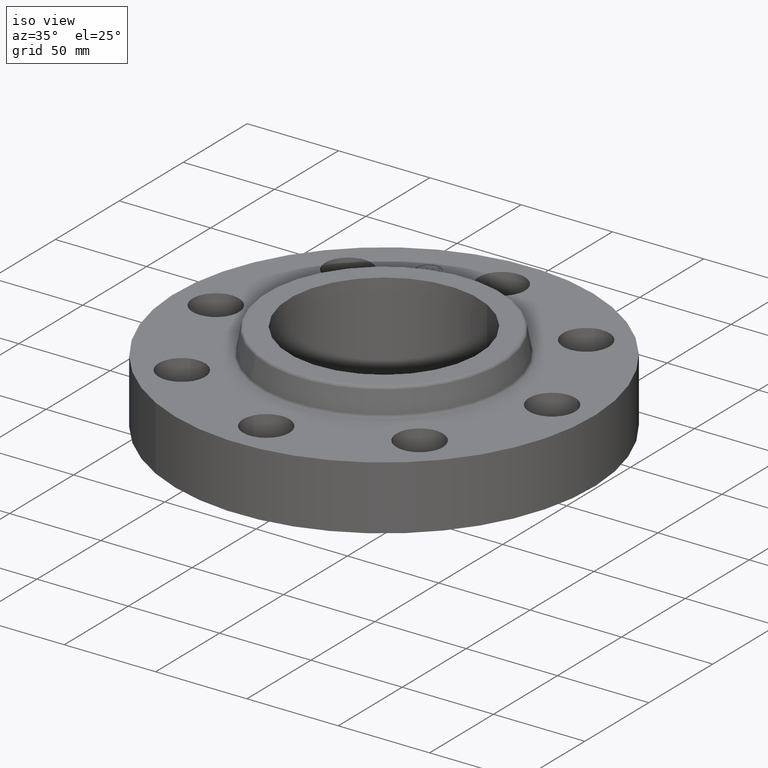
[diagram: clean part render]
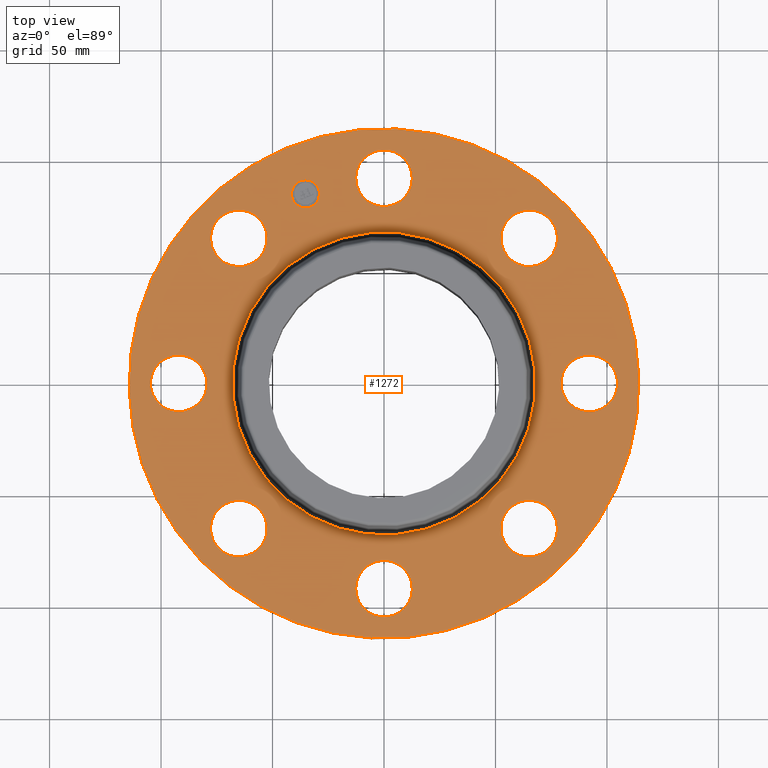
[diagram: tour spotlight — one face highlighted and labeled with its STEP entity id]
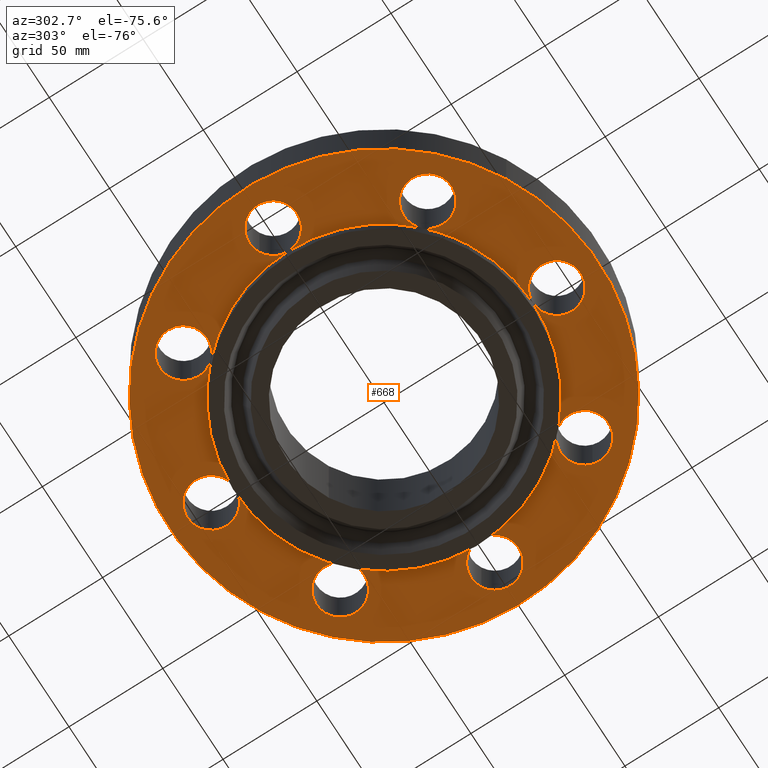
[diagram: tour spotlight — one face highlighted and labeled with its STEP entity id]
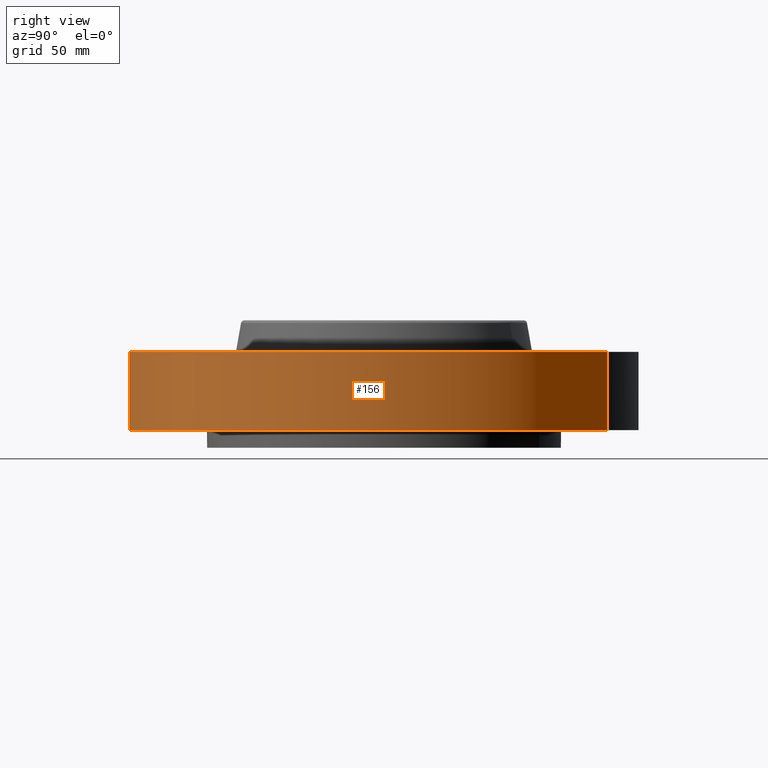
[diagram: tour spotlight — one face highlighted and labeled with its STEP entity id]
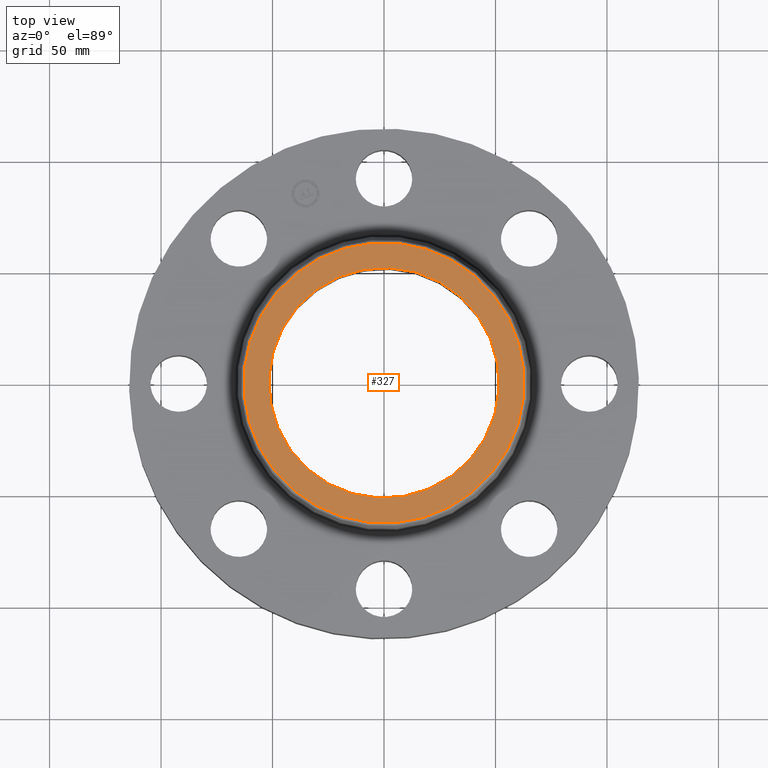
[diagram: tour spotlight — one face highlighted and labeled with its STEP entity id]
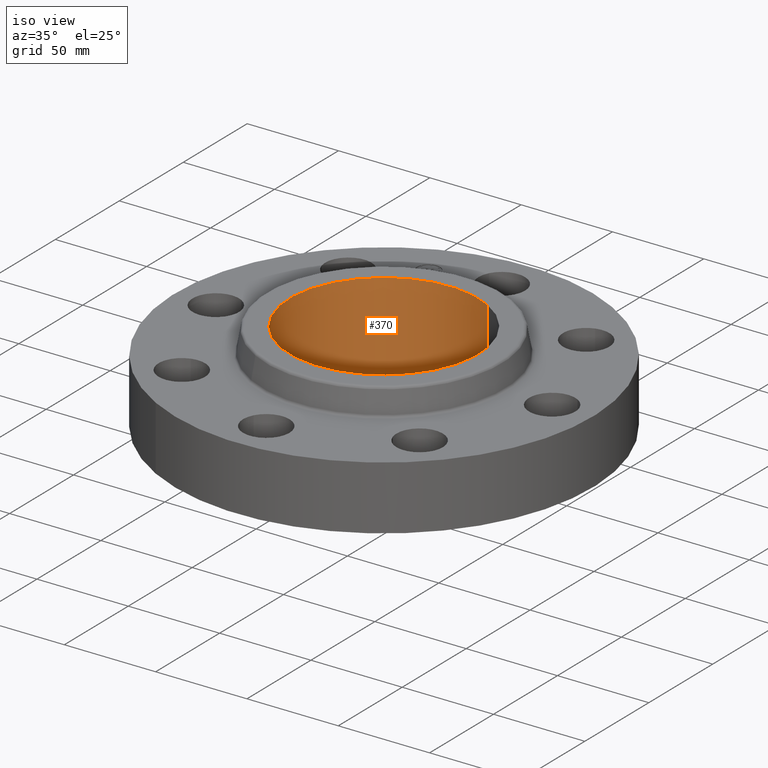
[diagram: tour spotlight — one face highlighted and labeled with its STEP entity id]
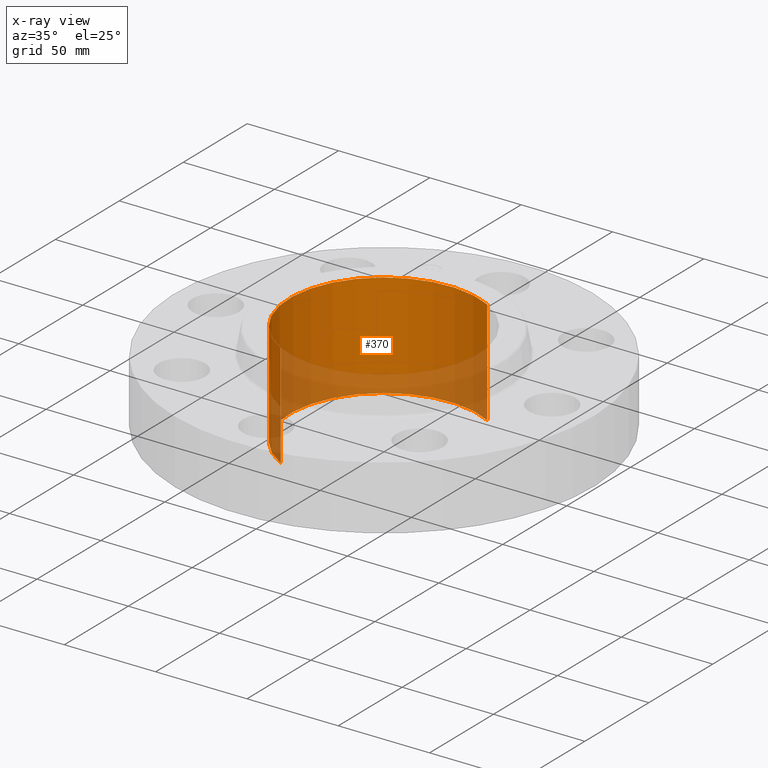
[diagram: x-ray of the same camera — body ghosted, this tour face saturated]
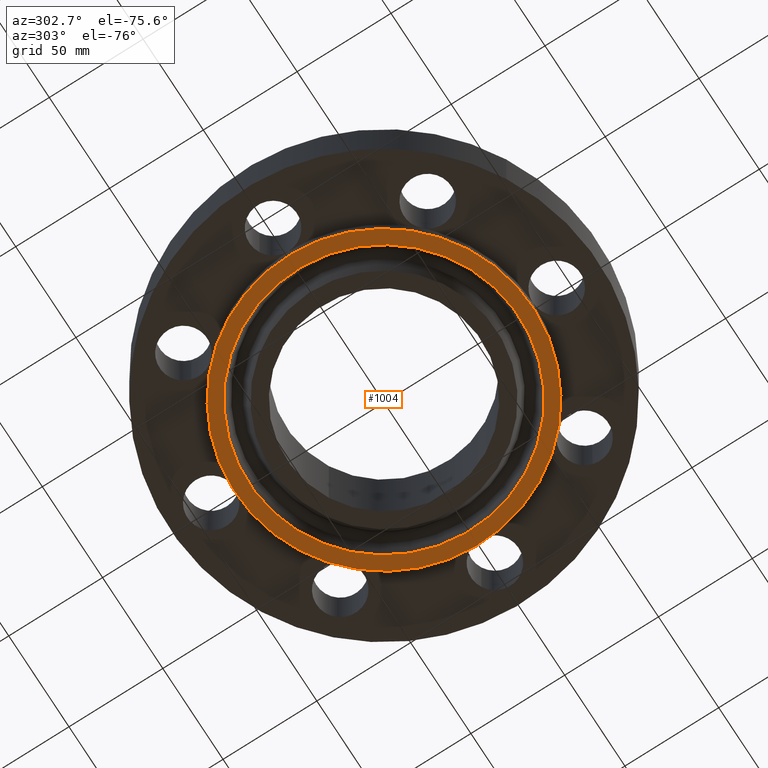
[diagram: tour spotlight — one face highlighted and labeled with its STEP entity id]
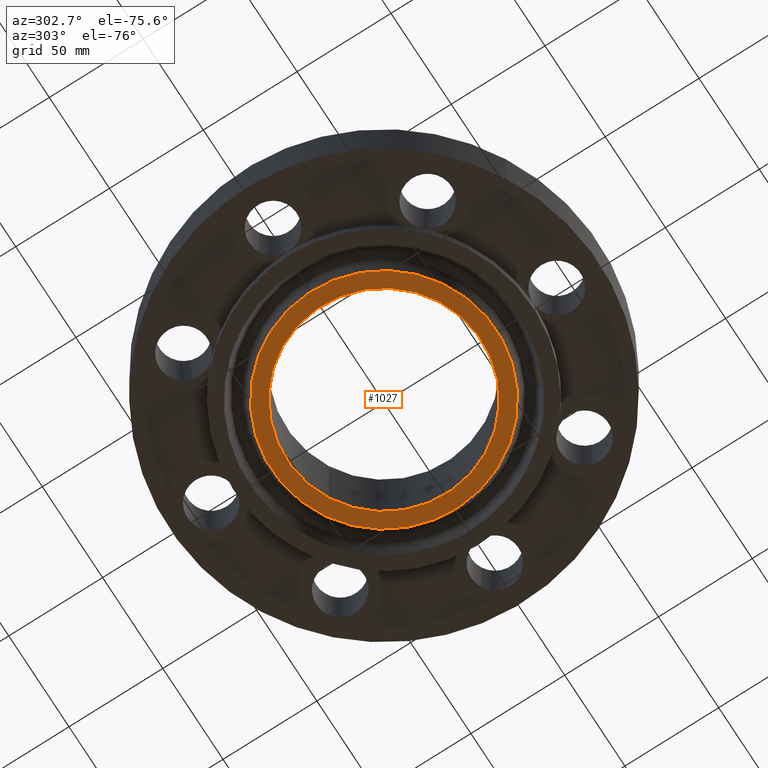
[diagram: tour spotlight — one face highlighted and labeled with its STEP entity id]
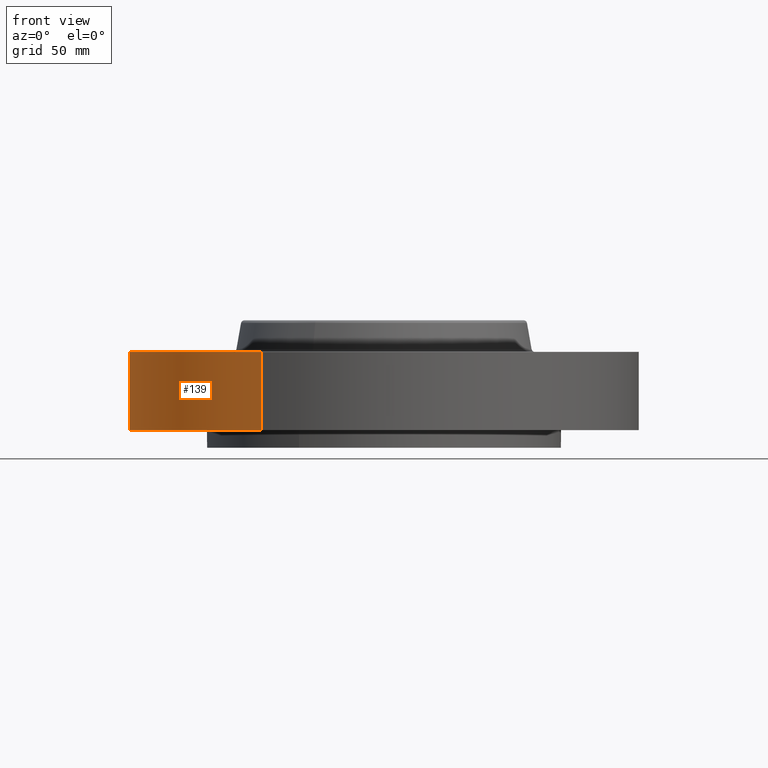
[diagram: tour spotlight — one face highlighted and labeled with its STEP entity id]
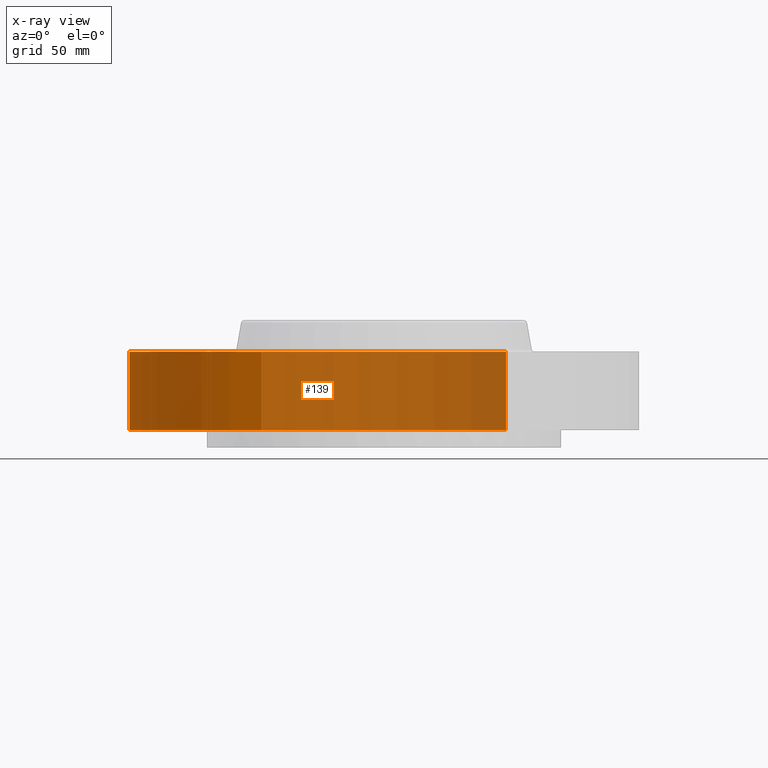
[diagram: x-ray of the same camera — body ghosted, this tour face saturated]
A machine part: a face-by-face anatomy tour. The part has 427 B-rep faces; the first image is the clean iso view, then the 8 largest visible faces are spotlighted one at a time (largest first), each with its STEP entity span.

Face 1 — top view, entity #1272. In plain terms, the highlighted planar face has unit normal (0, 0, -1).
Definition (entity closure, byte-faithful):
#65=AXIS2_PLACEMENT_3D('Circle Axis2P3D',#63,#64,$) ;
#89=AXIS2_PLACEMENT_3D('Circle Axis2P3D',#87,#88,$) ;
#123=AXIS2_PLACEMENT_3D('Circle Axis2P3D',#121,#122,$) ;
#147=AXIS2_PLACEMENT_3D('Circle Axis2P3D',#145,#146,$) ;
#164=AXIS2_PLACEMENT_3D('Circle Axis2P3D',#162,#163,$) ;
#199=AXIS2_PLACEMENT_3D('Circle Axis2P3D',#197,#198,$) ;
#690=AXIS2_PLACEMENT_3D('Circle Axis2P3D',#688,#689,$) ;
#702=AXIS2_PLACEMENT_3D('Circle Axis2P3D',#700,#701,$) ;
#734=AXIS2_PLACEMENT_3D('Circle Axis2P3D',#732,#733,$) ;
#746=AXIS2_PLACEMENT_3D('Circle Axis2P3D',#744,#745,$) ;
#778=AXIS2_PLACEMENT_3D('Circle Axis2P3D',#776,#777,$) ;
#790=AXIS2_PLACEMENT_3D('Circle Axis2P3D',#788,#789,$) ;
#822=AXIS2_PLACEMENT_3D('Circle Axis2P3D',#820,#821,$) ;
#834=AXIS2_PLACEMENT_3D('Circle Axis2P3D',#832,#833,$) ;
#866=AXIS2_PLACEMENT_3D('Circle Axis2P3D',#864,#865,$) ;
#878=AXIS2_PLACEMENT_3D('Circle Axis2P3D',#876,#877,$) ;
#910=AXIS2_PLACEMENT_3D('Circle Axis2P3D',#908,#909,$) ;
#922=AXIS2_PLACEMENT_3D('Circle Axis2P3D',#920,#921,$) ;
#954=AXIS2_PLACEMENT_3D('Circle Axis2P3D',#952,#953,$) ;
#966=AXIS2_PLACEMENT_3D('Circle Axis2P3D',#964,#965,$) ;
#1212=AXIS2_PLACEMENT_3D('Plane Axis2P3D',#1209,#1210,#1211) ;
#1256=AXIS2_PLACEMENT_3D('Circle Axis2P3D',#1254,#1255,$) ;
#1265=AXIS2_PLACEMENT_3D('Circle Axis2P3D',#1263,#1264,$) ;
#46=CARTESIAN_POINT('Vertex',(-0.438791280947,3.86471276932,1.38000000001)) ;
#60=CARTESIAN_POINT('Vertex',(0.438791280947,3.38528723071,1.38000000001)) ;
#63=CARTESIAN_POINT('Axis2P3D Location',(0.,3.62500000001,1.38000000001)) ;
#87=CARTESIAN_POINT('Axis2P3D Location',(0.,3.62500000001,1.38000000001)) ;
#118=CARTESIAN_POINT('Vertex',(-2.15741492373,-3.94912152852,1.38000000001)) ;
#121=CARTESIAN_POINT('Axis2P3D Location',(0.,0.,1.38000000001)) ;
#125=CARTESIAN_POINT('Vertex',(2.15741492373,3.94912152852,1.38000000001)) ;
#145=CARTESIAN_POINT('Axis2P3D Location',(0.,0.,1.38000000001)) ;
#162=CARTESIAN_POINT('Axis2P3D Location',(0.,0.,1.38000000001)) ;
#166=CARTESIAN_POINT('Vertex',(1.2826291864,2.34783697721,1.38000000001)) ;
#168=CARTESIAN_POINT('Vertex',(-1.2826291864,-2.34783697721,1.38000000001)) ;
#197=CARTESIAN_POINT('Axis2P3D Location',(0.,0.,1.38000000001)) ;
#678=CARTESIAN_POINT('Vertex',(0.438791280947,-3.86471276932,1.38000000001)) ;
#685=CARTESIAN_POINT('Vertex',(-0.438791280947,-3.38528723071,1.38000000001)) ;
#688=CARTESIAN_POINT('Axis2P3D Location',(4.43934464693E-016,-3.62500000001,1.38000000001)) ;
#700=CARTESIAN_POINT('Axis2P3D Location',(4.43934464693E-016,-3.62500000001,1.38000000001)) ;
#722=CARTESIAN_POINT('Vertex',(-3.04303689681,2.42249231624,1.38000000001)) ;
#729=CARTESIAN_POINT('Vertex',(-2.08348726682,2.70403184738,1.38000000001)) ;
#732=CARTESIAN_POINT('Axis2P3D Location',(-2.56326208181,2.56326208181,1.38000000001)) ;
#744=CARTESIAN_POINT('Axis2P3D Location',(-2.56326208181,2.56326208181,1.38000000001)) ;
#766=CARTESIAN_POINT('Vertex',(3.04303689681,-2.42249231624,1.38000000001)) ;
#773=CARTESIAN_POINT('Vertex',(2.08348726682,-2.70403184738,1.38000000001)) ;
#776=CARTESIAN_POINT('Axis2P3D Location',(2.56326208181,-2.56326208181,1.38000000001)) ;
#788=CARTESIAN_POINT('Axis2P3D Location',(2.56326208181,-2.56326208181,1.38000000001)) ;
#810=CARTESIAN_POINT('Vertex',(2.42249231624,3.04303689681,1.38000000001)) ;
#817=CARTESIAN_POINT('Vertex',(2.70403184738,2.08348726682,1.38000000001)) ;
#820=CARTESIAN_POINT('Axis2P3D Location',(2.56326208181,2.56326208181,1.38000000001)) ;
#832=CARTESIAN_POINT('Axis2P3D Location',(2.56326208181,2.56326208181,1.38000000001)) ;
#854=CARTESIAN_POINT('Vertex',(-3.86471276932,-0.438791280947,1.38000000001)) ;
#861=CARTESIAN_POINT('Vertex',(-3.38528723071,0.438791280947,1.38000000001)) ;
#864=CARTESIAN_POINT('Axis2P3D Location',(-3.62500000001,-1.22538416614E-015,1.38000000001)) ;
#876=CARTESIAN_POINT('Axis2P3D Location',(-3.62500000001,-1.22538416614E-015,1.38000000001)) ;
#898=CARTESIAN_POINT('Vertex',(-2.42249231624,-3.04303689681,1.38000000001)) ;
#905=CARTESIAN_POINT('Vertex',(-2.70403184738,-2.08348726682,1.38000000001)) ;
#908=CARTESIAN_POINT('Axis2P3D Location',(-2.56326208181,-2.56326208181,1.38000000001)) ;
#920=CARTESIAN_POINT('Axis2P3D Location',(-2.56326208181,-2.56326208181,1.38000000001)) ;
#942=CARTESIAN_POINT('Vertex',(3.86471276932,0.438791280947,1.38000000001)) ;
#949=CARTESIAN_POINT('Vertex',(3.38528723071,-0.438791280947,1.38000000001)) ;
#952=CARTESIAN_POINT('Axis2P3D Location',(3.62500000001,2.21967232346E-016,1.38000000001)) ;
#964=CARTESIAN_POINT('Axis2P3D Location',(3.62500000001,2.21967232346E-016,1.38000000001)) ;
#1209=CARTESIAN_POINT('Axis2P3D Location',(0.,4.50000000002,1.38000000001)) ;
#1254=CARTESIAN_POINT('Axis2P3D Location',(-1.38722744233,3.34906330537,1.38000000001)) ;
#1258=CARTESIAN_POINT('Vertex',(-1.61588762663,3.25434915586,1.38000000001)) ;
#1260=CARTESIAN_POINT('Vertex',(-1.15856725803,3.44377745488,1.38000000001)) ;
#1263=CARTESIAN_POINT('Axis2P3D Location',(-1.38722744233,3.34906330537,1.38000000001)) ;
#64=DIRECTION('Axis2P3D Direction',(0.,-0.,-0.0393700787402)) ;
#88=DIRECTION('Axis2P3D Direction',(0.,-0.,-0.0393700787402)) ;
#122=DIRECTION('Axis2P3D Direction',(0.,0.,-0.0393700787402)) ;
#146=DIRECTION('Axis2P3D Direction',(0.,0.,-0.0393700787402)) ;
#163=DIRECTION('Axis2P3D Direction',(0.,0.,-0.0393700787402)) ;
#198=DIRECTION('Axis2P3D Direction',(0.,0.,-0.0393700787402)) ;
#689=DIRECTION('Axis2P3D Direction',(-0.,0.,-0.0393700787402)) ;
#701=DIRECTION('Axis2P3D Direction',(-0.,0.,-0.0393700787402)) ;
#733=DIRECTION('Axis2P3D Direction',(0.,0.,-0.0393700787402)) ;
#745=DIRECTION('Axis2P3D Direction',(0.,0.,-0.0393700787402)) ;
#777=DIRECTION('Axis2P3D Direction',(-0.,0.,-0.0393700787402)) ;
#789=DIRECTION('Axis2P3D Direction',(-0.,0.,-0.0393700787402)) ;
#821=DIRECTION('Axis2P3D Direction',(0.,-0.,-0.0393700787402)) ;
#833=DIRECTION('Axis2P3D Direction',(0.,-0.,-0.0393700787402)) ;
#865=DIRECTION('Axis2P3D Direction',(0.,0.,-0.0393700787402)) ;
#877=DIRECTION('Axis2P3D Direction',(0.,0.,-0.0393700787402)) ;
#909=DIRECTION('Axis2P3D Direction',(0.,0.,-0.0393700787402)) ;
#921=DIRECTION('Axis2P3D Direction',(0.,0.,-0.0393700787402)) ;
#953=DIRECTION('Axis2P3D Direction',(0.,-0.,-0.0393700787402)) ;
#965=DIRECTION('Axis2P3D Direction',(0.,-0.,-0.0393700787402)) ;
#1210=DIRECTION('Axis2P3D Direction',(0.,0.,-0.0393700787402)) ;
#1211=DIRECTION('Axis2P3D XDirection',(0.0393700787402,0.,0.)) ;
#1255=DIRECTION('Axis2P3D Direction',(0.,0.,-0.0393700787402)) ;
#1264=DIRECTION('Axis2P3D Direction',(0.,0.,-0.0393700787402)) ;
#1215=ORIENTED_EDGE('',*,*,#149,.F.) ;
#1216=ORIENTED_EDGE('',*,*,#127,.F.) ;
#1219=ORIENTED_EDGE('',*,*,#67,.T.) ;
#1220=ORIENTED_EDGE('',*,*,#91,.T.) ;
#1223=ORIENTED_EDGE('',*,*,#201,.T.) ;
#1224=ORIENTED_EDGE('',*,*,#170,.T.) ;
#1227=ORIENTED_EDGE('',*,*,#836,.T.) ;
#1228=ORIENTED_EDGE('',*,*,#824,.T.) ;
#1231=ORIENTED_EDGE('',*,*,#968,.T.) ;
#1232=ORIENTED_EDGE('',*,*,#956,.T.) ;
#1235=ORIENTED_EDGE('',*,*,#792,.T.) ;
#1236=ORIENTED_EDGE('',*,*,#780,.T.) ;
#1239=ORIENTED_EDGE('',*,*,#704,.T.) ;
#1240=ORIENTED_EDGE('',*,*,#692,.T.) ;
#1243=ORIENTED_EDGE('',*,*,#924,.T.) ;
#1244=ORIENTED_EDGE('',*,*,#912,.T.) ;
#1247=ORIENTED_EDGE('',*,*,#880,.T.) ;
#1248=ORIENTED_EDGE('',*,*,#868,.T.) ;
#1251=ORIENTED_EDGE('',*,*,#748,.T.) ;
#1252=ORIENTED_EDGE('',*,*,#736,.T.) ;
#1269=ORIENTED_EDGE('',*,*,#1262,.T.) ;
#1270=ORIENTED_EDGE('',*,*,#1267,.T.) ;
#1221=FACE_BOUND('',#1218,.T.) ;
#1225=FACE_BOUND('',#1222,.T.) ;
#1229=FACE_BOUND('',#1226,.T.) ;
#1233=FACE_BOUND('',#1230,.T.) ;
#1237=FACE_BOUND('',#1234,.T.) ;
#1241=FACE_BOUND('',#1238,.T.) ;
#1245=FACE_BOUND('',#1242,.T.) ;
#1249=FACE_BOUND('',#1246,.T.) ;
#1253=FACE_BOUND('',#1250,.T.) ;
#1271=FACE_BOUND('',#1268,.T.) ;
#1272=ADVANCED_FACE('PartBody',(#1217,#1221,#1225,#1229,#1233,#1237,#1241,#1245,#1249,#1253,#1271),#1213,.F.) ;
#66=CIRCLE('generated circle',#65,0.500000000002) ;
#90=CIRCLE('generated circle',#89,0.500000000002) ;
#124=CIRCLE('generated circle',#123,4.50000000002) ;
#148=CIRCLE('generated circle',#147,4.50000000002) ;
#165=CIRCLE('generated circle',#164,2.67534597788) ;
#200=CIRCLE('generated circle',#199,2.67534597788) ;
#691=CIRCLE('generated circle',#690,0.500000000002) ;
#703=CIRCLE('generated circle',#702,0.500000000002) ;
#735=CIRCLE('generated circle',#734,0.500000000002) ;
#747=CIRCLE('generated circle',#746,0.500000000002) ;
#779=CIRCLE('generated circle',#778,0.500000000002) ;
#791=CIRCLE('generated circle',#790,0.500000000002) ;
#823=CIRCLE('generated circle',#822,0.500000000002) ;
#835=CIRCLE('generated circle',#834,0.500000000002) ;
#867=CIRCLE('generated circle',#866,0.500000000002) ;
#879=CIRCLE('generated circle',#878,0.500000000002) ;
#911=CIRCLE('generated circle',#910,0.500000000002) ;
#923=CIRCLE('generated circle',#922,0.500000000002) ;
#955=CIRCLE('generated circle',#954,0.500000000002) ;
#967=CIRCLE('generated circle',#966,0.500000000002) ;
#1257=CIRCLE('generated circle',#1256,0.247500000001) ;
#1266=CIRCLE('generated circle',#1265,0.247500000001) ;
#67=EDGE_CURVE('',#47,#61,#66,.T.) ;
#91=EDGE_CURVE('',#61,#47,#90,.T.) ;
#127=EDGE_CURVE('',#119,#126,#124,.T.) ;
#149=EDGE_CURVE('',#126,#119,#148,.T.) ;
#170=EDGE_CURVE('',#167,#169,#165,.T.) ;
#201=EDGE_CURVE('',#169,#167,#200,.T.) ;
#692=EDGE_CURVE('',#679,#686,#691,.T.) ;
#704=EDGE_CURVE('',#686,#679,#703,.T.) ;
#736=EDGE_CURVE('',#723,#730,#735,.T.) ;
#748=EDGE_CURVE('',#730,#723,#747,.T.) ;
#780=EDGE_CURVE('',#767,#774,#779,.T.) ;
#792=EDGE_CURVE('',#774,#767,#791,.T.) ;
#824=EDGE_CURVE('',#811,#818,#823,.T.) ;
#836=EDGE_CURVE('',#818,#811,#835,.T.) ;
#868=EDGE_CURVE('',#855,#862,#867,.T.) ;
#880=EDGE_CURVE('',#862,#855,#879,.T.) ;
#912=EDGE_CURVE('',#899,#906,#911,.T.) ;
#924=EDGE_CURVE('',#906,#899,#923,.T.) ;
#956=EDGE_CURVE('',#943,#950,#955,.T.) ;
#968=EDGE_CURVE('',#950,#943,#967,.T.) ;
#1262=EDGE_CURVE('',#1259,#1261,#1257,.T.) ;
#1267=EDGE_CURVE('',#1261,#1259,#1266,.T.) ;
#1214=EDGE_LOOP('',(#1215,#1216)) ;
#1218=EDGE_LOOP('',(#1219,#1220)) ;
#1222=EDGE_LOOP('',(#1223,#1224)) ;
#1226=EDGE_LOOP('',(#1227,#1228)) ;
#1230=EDGE_LOOP('',(#1231,#1232)) ;
#1234=EDGE_LOOP('',(#1235,#1236)) ;
#1238=EDGE_LOOP('',(#1239,#1240)) ;
#1242=EDGE_LOOP('',(#1243,#1244)) ;
#1246=EDGE_LOOP('',(#1247,#1248)) ;
#1250=EDGE_LOOP('',(#1251,#1252)) ;
#1268=EDGE_LOOP('',(#1269,#1270)) ;
#1217=FACE_OUTER_BOUND('',#1214,.T.) ;
#1213=PLANE('',#1212) ;
#47=VERTEX_POINT('',#46) ;
#61=VERTEX_POINT('',#60) ;
#119=VERTEX_POINT('',#118) ;
#126=VERTEX_POINT('',#125) ;
#167=VERTEX_POINT('',#166) ;
#169=VERTEX_POINT('',#168) ;
#679=VERTEX_POINT('',#678) ;
#686=VERTEX_POINT('',#685) ;
#723=VERTEX_POINT('',#722) ;
#730=VERTEX_POINT('',#729) ;
#767=VERTEX_POINT('',#766) ;
#774=VERTEX_POINT('',#773) ;
#811=VERTEX_POINT('',#810) ;
#818=VERTEX_POINT('',#817) ;
#855=VERTEX_POINT('',#854) ;
#862=VERTEX_POINT('',#861) ;
#899=VERTEX_POINT('',#898) ;
#906=VERTEX_POINT('',#905) ;
#943=VERTEX_POINT('',#942) ;
#950=VERTEX_POINT('',#949) ;
#1259=VERTEX_POINT('',#1258) ;
#1261=VERTEX_POINT('',#1260) ;

Face 2 — auxiliary view, entity #668. In plain terms, the highlighted planar face has unit normal (0, 0, -1).
Definition (entity closure, byte-faithful):
#51=AXIS2_PLACEMENT_3D('Circle Axis2P3D',#49,#50,$) ;
#77=AXIS2_PLACEMENT_3D('Circle Axis2P3D',#75,#76,$) ;
#84=AXIS2_PLACEMENT_3D('Circle Axis2P3D',#82,#83,$) ;
#107=AXIS2_PLACEMENT_3D('Circle Axis2P3D',#105,#106,$) ;
#142=AXIS2_PLACEMENT_3D('Circle Axis2P3D',#140,#141,$) ;
#394=AXIS2_PLACEMENT_3D('Circle Axis2P3D',#392,#393,$) ;
#401=AXIS2_PLACEMENT_3D('Circle Axis2P3D',#399,#400,$) ;
#408=AXIS2_PLACEMENT_3D('Circle Axis2P3D',#406,#407,$) ;
#415=AXIS2_PLACEMENT_3D('Circle Axis2P3D',#413,#414,$) ;
#420=AXIS2_PLACEMENT_3D('Circle Axis2P3D',#418,#419,$) ;
#448=AXIS2_PLACEMENT_3D('Circle Axis2P3D',#446,#447,$) ;
#455=AXIS2_PLACEMENT_3D('Circle Axis2P3D',#453,#454,$) ;
#462=AXIS2_PLACEMENT_3D('Circle Axis2P3D',#460,#461,$) ;
#469=AXIS2_PLACEMENT_3D('Circle Axis2P3D',#467,#468,$) ;
#476=AXIS2_PLACEMENT_3D('Circle Axis2P3D',#474,#475,$) ;
#493=AXIS2_PLACEMENT_3D('Plane Axis2P3D',#490,#491,#492) ;
#501=AXIS2_PLACEMENT_3D('Circle Axis2P3D',#499,#500,$) ;
#508=AXIS2_PLACEMENT_3D('Circle Axis2P3D',#506,#507,$) ;
#515=AXIS2_PLACEMENT_3D('Circle Axis2P3D',#513,#514,$) ;
#520=AXIS2_PLACEMENT_3D('Circle Axis2P3D',#518,#519,$) ;
#527=AXIS2_PLACEMENT_3D('Circle Axis2P3D',#525,#526,$) ;
#534=AXIS2_PLACEMENT_3D('Circle Axis2P3D',#532,#533,$) ;
#539=AXIS2_PLACEMENT_3D('Circle Axis2P3D',#537,#538,$) ;
#546=AXIS2_PLACEMENT_3D('Circle Axis2P3D',#544,#545,$) ;
#553=AXIS2_PLACEMENT_3D('Circle Axis2P3D',#551,#552,$) ;
#558=AXIS2_PLACEMENT_3D('Circle Axis2P3D',#556,#557,$) ;
#565=AXIS2_PLACEMENT_3D('Circle Axis2P3D',#563,#564,$) ;
#572=AXIS2_PLACEMENT_3D('Circle Axis2P3D',#570,#571,$) ;
#577=AXIS2_PLACEMENT_3D('Circle Axis2P3D',#575,#576,$) ;
#584=AXIS2_PLACEMENT_3D('Circle Axis2P3D',#582,#583,$) ;
#591=AXIS2_PLACEMENT_3D('Circle Axis2P3D',#589,#590,$) ;
#596=AXIS2_PLACEMENT_3D('Circle Axis2P3D',#594,#595,$) ;
#603=AXIS2_PLACEMENT_3D('Circle Axis2P3D',#601,#602,$) ;
#610=AXIS2_PLACEMENT_3D('Circle Axis2P3D',#608,#609,$) ;
#615=AXIS2_PLACEMENT_3D('Circle Axis2P3D',#613,#614,$) ;
#622=AXIS2_PLACEMENT_3D('Circle Axis2P3D',#620,#621,$) ;
#629=AXIS2_PLACEMENT_3D('Circle Axis2P3D',#627,#628,$) ;
#44=CARTESIAN_POINT('Vertex',(-0.438791280947,3.86471276932,0.)) ;
#49=CARTESIAN_POINT('Axis2P3D Location',(0.,3.62500000001,0.)) ;
#53=CARTESIAN_POINT('Vertex',(0.438791280947,3.38528723071,0.)) ;
#75=CARTESIAN_POINT('Axis2P3D Location',(0.,3.62500000001,0.)) ;
#79=CARTESIAN_POINT('Vertex',(-1.33945743657E-015,3.12500000001,2.79741234551E-016)) ;
#82=CARTESIAN_POINT('Axis2P3D Location',(0.,3.62500000001,0.)) ;
#105=CARTESIAN_POINT('Axis2P3D Location',(0.,0.,4.19611851827E-016)) ;
#109=CARTESIAN_POINT('Vertex',(-2.15741492373,-3.94912152852,2.79741234551E-016)) ;
#111=CARTESIAN_POINT('Vertex',(2.15741492373,3.94912152852,2.79741234551E-016)) ;
#140=CARTESIAN_POINT('Axis2P3D Location',(0.,0.,4.19611851827E-016)) ;
#389=CARTESIAN_POINT('Vertex',(-1.49820480814,-2.74244550592,2.79741234551E-016)) ;
#392=CARTESIAN_POINT('Axis2P3D Location',(0.,0.,2.79741234551E-016)) ;
#396=CARTESIAN_POINT('Vertex',(-2.20970869122,-2.20970869122,0.)) ;
#399=CARTESIAN_POINT('Axis2P3D Location',(0.,0.,2.79741234551E-016)) ;
#403=CARTESIAN_POINT('Vertex',(-3.12500000001,-1.67844740731E-015,0.)) ;
#406=CARTESIAN_POINT('Axis2P3D Location',(0.,0.,2.79741234551E-016)) ;
#410=CARTESIAN_POINT('Vertex',(-2.20970869122,2.20970869122,0.)) ;
#413=CARTESIAN_POINT('Axis2P3D Location',(0.,0.,2.79741234551E-016)) ;
#418=CARTESIAN_POINT('Axis2P3D Location',(0.,0.,2.79741234551E-016)) ;
#422=CARTESIAN_POINT('Vertex',(1.49820480814,2.74244550592,2.79741234551E-016)) ;
#446=CARTESIAN_POINT('Axis2P3D Location',(0.,0.,2.79741234551E-016)) ;
#450=CARTESIAN_POINT('Vertex',(2.20970869122,2.20970869122,0.)) ;
#453=CARTESIAN_POINT('Axis2P3D Location',(0.,0.,2.79741234551E-016)) ;
#457=CARTESIAN_POINT('Vertex',(3.12500000001,0.,0.)) ;
#460=CARTESIAN_POINT('Axis2P3D Location',(0.,0.,2.79741234551E-016)) ;
#464=CARTESIAN_POINT('Vertex',(2.20970869122,-2.20970869122,0.)) ;
#467=CARTESIAN_POINT('Axis2P3D Location',(0.,0.,2.79741234551E-016)) ;
#471=CARTESIAN_POINT('Vertex',(8.29897616581E-017,-3.12500000001,0.)) ;
#474=CARTESIAN_POINT('Axis2P3D Location',(0.,0.,2.79741234551E-016)) ;
#490=CARTESIAN_POINT('Axis2P3D Location',(0.,3.12500000001,0.)) ;
#499=CARTESIAN_POINT('Axis2P3D Location',(3.62500000001,0.,0.)) ;
#503=CARTESIAN_POINT('Vertex',(3.38528723071,-0.438791280947,0.)) ;
#506=CARTESIAN_POINT('Axis2P3D Location',(3.62500000001,5.59482469102E-016,0.)) ;
#510=CARTESIAN_POINT('Vertex',(3.86471276932,0.438791280947,0.)) ;
#513=CARTESIAN_POINT('Axis2P3D Location',(3.62500000001,0.,0.)) ;
#518=CARTESIAN_POINT('Axis2P3D Location',(2.56326208181,2.56326208181,0.)) ;
#522=CARTESIAN_POINT('Vertex',(2.70403184738,2.08348726682,0.)) ;
#525=CARTESIAN_POINT('Axis2P3D Location',(2.56326208181,2.56326208181,0.)) ;
#529=CARTESIAN_POINT('Vertex',(2.42249231624,3.04303689681,0.)) ;
#532=CARTESIAN_POINT('Axis2P3D Location',(2.56326208181,2.56326208181,0.)) ;
#537=CARTESIAN_POINT('Axis2P3D Location',(-2.56326208181,2.56326208181,0.)) ;
#541=CARTESIAN_POINT('Vertex',(-2.08348726682,2.70403184738,0.)) ;
#544=CARTESIAN_POINT('Axis2P3D Location',(-2.56326208181,2.56326208181,0.)) ;
#548=CARTESIAN_POINT('Vertex',(-3.04303689681,2.42249231624,0.)) ;
#551=CARTESIAN_POINT('Axis2P3D Location',(-2.56326208181,2.56326208181,0.)) ;
#556=CARTESIAN_POINT('Axis2P3D Location',(-3.62500000001,-1.67844740731E-015,0.)) ;
#560=CARTESIAN_POINT('Vertex',(-3.38528723071,0.438791280947,0.)) ;
#563=CARTESIAN_POINT('Axis2P3D Location',(-3.62500000001,-1.1189649382E-015,0.)) ;
#567=CARTESIAN_POINT('Vertex',(-3.86471276932,-0.438791280947,0.)) ;
#570=CARTESIAN_POINT('Axis2P3D Location',(-3.62500000001,-1.67844740731E-015,0.)) ;
#575=CARTESIAN_POINT('Axis2P3D Location',(-2.56326208181,-2.56326208181,0.)) ;
#579=CARTESIAN_POINT('Vertex',(-2.70403184738,-2.08348726682,0.)) ;
#582=CARTESIAN_POINT('Axis2P3D Location',(-2.56326208181,-2.56326208181,0.)) ;
#586=CARTESIAN_POINT('Vertex',(-2.42249231624,-3.04303689681,0.)) ;
#589=CARTESIAN_POINT('Axis2P3D Location',(-2.56326208181,-2.56326208181,0.)) ;
#594=CARTESIAN_POINT('Axis2P3D Location',(1.74838271595E-016,-3.62500000001,0.)) ;
#598=CARTESIAN_POINT('Vertex',(-0.438791280947,-3.38528723071,0.)) ;
#601=CARTESIAN_POINT('Axis2P3D Location',(2.79741234551E-016,-3.62500000001,0.)) ;
#605=CARTESIAN_POINT('Vertex',(0.438791280947,-3.86471276932,0.)) ;
#608=CARTESIAN_POINT('Axis2P3D Location',(1.74838271595E-016,-3.62500000001,0.)) ;
#613=CARTESIAN_POINT('Axis2P3D Location',(2.56326208181,-2.56326208181,0.)) ;
#617=CARTESIAN_POINT('Vertex',(2.08348726682,-2.70403184738,0.)) ;
#620=CARTESIAN_POINT('Axis2P3D Location',(2.56326208181,-2.56326208181,0.)) ;
#624=CARTESIAN_POINT('Vertex',(3.04303689681,-2.42249231624,0.)) ;
#627=CARTESIAN_POINT('Axis2P3D Location',(2.56326208181,-2.56326208181,0.)) ;
#50=DIRECTION('Axis2P3D Direction',(0.,-0.,-0.0393700787402)) ;
#76=DIRECTION('Axis2P3D Direction',(0.,-0.,-0.0393700787402)) ;
#83=DIRECTION('Axis2P3D Direction',(0.,-0.,-0.0393700787402)) ;
#106=DIRECTION('Axis2P3D Direction',(0.,0.,-0.0393700787402)) ;
#141=DIRECTION('Axis2P3D Direction',(0.,0.,-0.0393700787402)) ;
#393=DIRECTION('Axis2P3D Direction',(0.,0.,-0.0393700787402)) ;
#400=DIRECTION('Axis2P3D Direction',(0.,0.,-0.0393700787402)) ;
#407=DIRECTION('Axis2P3D Direction',(0.,0.,-0.0393700787402)) ;
#414=DIRECTION('Axis2P3D Direction',(0.,0.,-0.0393700787402)) ;
#419=DIRECTION('Axis2P3D Direction',(0.,0.,-0.0393700787402)) ;
#447=DIRECTION('Axis2P3D Direction',(0.,0.,-0.0393700787402)) ;
#454=DIRECTION('Axis2P3D Direction',(0.,0.,-0.0393700787402)) ;
#461=DIRECTION('Axis2P3D Direction',(0.,0.,-0.0393700787402)) ;
#468=DIRECTION('Axis2P3D Direction',(0.,0.,-0.0393700787402)) ;
#475=DIRECTION('Axis2P3D Direction',(0.,0.,-0.0393700787402)) ;
#491=DIRECTION('Axis2P3D Direction',(0.,0.,-0.0393700787402)) ;
#492=DIRECTION('Axis2P3D XDirection',(0.0393700787402,0.,0.)) ;
#500=DIRECTION('Axis2P3D Direction',(0.,0.,-0.0393700787402)) ;
#507=DIRECTION('Axis2P3D Direction',(0.,0.,-0.0393700787402)) ;
#514=DIRECTION('Axis2P3D Direction',(0.,0.,-0.0393700787402)) ;
#519=DIRECTION('Axis2P3D Direction',(0.,0.,-0.0393700787402)) ;
#526=DIRECTION('Axis2P3D Direction',(0.,0.,-0.0393700787402)) ;
#533=DIRECTION('Axis2P3D Direction',(0.,0.,-0.0393700787402)) ;
#538=DIRECTION('Axis2P3D Direction',(0.,0.,-0.0393700787402)) ;
#545=DIRECTION('Axis2P3D Direction',(0.,0.,-0.0393700787402)) ;
#552=DIRECTION('Axis2P3D Direction',(0.,0.,-0.0393700787402)) ;
#557=DIRECTION('Axis2P3D Direction',(0.,0.,-0.0393700787402)) ;
#564=DIRECTION('Axis2P3D Direction',(0.,0.,-0.0393700787402)) ;
#571=DIRECTION('Axis2P3D Direction',(0.,0.,-0.0393700787402)) ;
#576=DIRECTION('Axis2P3D Direction',(0.,0.,-0.0393700787402)) ;
#583=DIRECTION('Axis2P3D Direction',(0.,0.,-0.0393700787402)) ;
#590=DIRECTION('Axis2P3D Direction',(0.,0.,-0.0393700787402)) ;
#595=DIRECTION('Axis2P3D Direction',(0.,0.,-0.0393700787402)) ;
#602=DIRECTION('Axis2P3D Direction',(0.,0.,-0.0393700787402)) ;
#609=DIRECTION('Axis2P3D Direction',(0.,0.,-0.0393700787402)) ;
#614=DIRECTION('Axis2P3D Direction',(0.,0.,-0.0393700787402)) ;
#621=DIRECTION('Axis2P3D Direction',(0.,0.,-0.0393700787402)) ;
#628=DIRECTION('Axis2P3D Direction',(0.,0.,-0.0393700787402)) ;
#496=ORIENTED_EDGE('',*,*,#113,.T.) ;
#497=ORIENTED_EDGE('',*,*,#144,.T.) ;
#633=ORIENTED_EDGE('',*,*,#505,.F.) ;
#634=ORIENTED_EDGE('',*,*,#512,.F.) ;
#635=ORIENTED_EDGE('',*,*,#517,.F.) ;
#636=ORIENTED_EDGE('',*,*,#459,.F.) ;
#637=ORIENTED_EDGE('',*,*,#524,.F.) ;
#638=ORIENTED_EDGE('',*,*,#531,.F.) ;
#639=ORIENTED_EDGE('',*,*,#536,.F.) ;
#640=ORIENTED_EDGE('',*,*,#452,.F.) ;
#641=ORIENTED_EDGE('',*,*,#424,.F.) ;
#642=ORIENTED_EDGE('',*,*,#81,.F.) ;
#643=ORIENTED_EDGE('',*,*,#55,.F.) ;
#644=ORIENTED_EDGE('',*,*,#86,.F.) ;
#645=ORIENTED_EDGE('',*,*,#417,.F.) ;
#646=ORIENTED_EDGE('',*,*,#543,.F.) ;
#647=ORIENTED_EDGE('',*,*,#550,.F.) ;
#648=ORIENTED_EDGE('',*,*,#555,.F.) ;
#649=ORIENTED_EDGE('',*,*,#412,.F.) ;
#650=ORIENTED_EDGE('',*,*,#562,.F.) ;
#651=ORIENTED_EDGE('',*,*,#569,.F.) ;
#652=ORIENTED_EDGE('',*,*,#574,.F.) ;
#653=ORIENTED_EDGE('',*,*,#405,.F.) ;
#654=ORIENTED_EDGE('',*,*,#581,.F.) ;
#655=ORIENTED_EDGE('',*,*,#588,.F.) ;
#656=ORIENTED_EDGE('',*,*,#593,.F.) ;
#657=ORIENTED_EDGE('',*,*,#398,.F.) ;
#658=ORIENTED_EDGE('',*,*,#478,.F.) ;
#659=ORIENTED_EDGE('',*,*,#600,.F.) ;
#660=ORIENTED_EDGE('',*,*,#607,.F.) ;
#661=ORIENTED_EDGE('',*,*,#612,.F.) ;
#662=ORIENTED_EDGE('',*,*,#473,.F.) ;
#663=ORIENTED_EDGE('',*,*,#619,.F.) ;
#664=ORIENTED_EDGE('',*,*,#626,.F.) ;
#665=ORIENTED_EDGE('',*,*,#631,.F.) ;
#666=ORIENTED_EDGE('',*,*,#466,.F.) ;
#667=FACE_BOUND('',#632,.T.) ;
#668=ADVANCED_FACE('PartBody',(#498,#667),#494,.T.) ;
#52=CIRCLE('generated circle',#51,0.500000000002) ;
#78=CIRCLE('generated circle',#77,0.500000000002) ;
#85=CIRCLE('generated circle',#84,0.500000000002) ;
#108=CIRCLE('generated circle',#107,4.50000000002) ;
#143=CIRCLE('generated circle',#142,4.50000000002) ;
#395=CIRCLE('generated circle',#394,3.12500000001) ;
#402=CIRCLE('generated circle',#401,3.12500000001) ;
#409=CIRCLE('generated circle',#408,3.12500000001) ;
#416=CIRCLE('generated circle',#415,3.12500000001) ;
#421=CIRCLE('generated circle',#420,3.12500000001) ;
#449=CIRCLE('generated circle',#448,3.12500000001) ;
#456=CIRCLE('generated circle',#455,3.12500000001) ;
#463=CIRCLE('generated circle',#462,3.12500000001) ;
#470=CIRCLE('generated circle',#469,3.12500000001) ;
#477=CIRCLE('generated circle',#476,3.12500000001) ;
#502=CIRCLE('generated circle',#501,0.500000000002) ;
#509=CIRCLE('generated circle',#508,0.500000000002) ;
#516=CIRCLE('generated circle',#515,0.500000000002) ;
#521=CIRCLE('generated circle',#520,0.500000000002) ;
#528=CIRCLE('generated circle',#527,0.500000000002) ;
#535=CIRCLE('generated circle',#534,0.500000000002) ;
#540=CIRCLE('generated circle',#539,0.500000000002) ;
#547=CIRCLE('generated circle',#546,0.500000000002) ;
#554=CIRCLE('generated circle',#553,0.500000000002) ;
#559=CIRCLE('generated circle',#558,0.500000000002) ;
#566=CIRCLE('generated circle',#565,0.500000000002) ;
#573=CIRCLE('generated circle',#572,0.500000000002) ;
#578=CIRCLE('generated circle',#577,0.500000000002) ;
#585=CIRCLE('generated circle',#584,0.500000000002) ;
#592=CIRCLE('generated circle',#591,0.500000000002) ;
#597=CIRCLE('generated circle',#596,0.500000000002) ;
#604=CIRCLE('generated circle',#603,0.500000000002) ;
#611=CIRCLE('generated circle',#610,0.500000000002) ;
#616=CIRCLE('generated circle',#615,0.500000000002) ;
#623=CIRCLE('generated circle',#622,0.500000000002) ;
#630=CIRCLE('generated circle',#629,0.500000000002) ;
#55=EDGE_CURVE('',#45,#54,#52,.T.) ;
#81=EDGE_CURVE('',#54,#80,#78,.T.) ;
#86=EDGE_CURVE('',#80,#45,#85,.T.) ;
#113=EDGE_CURVE('',#110,#112,#108,.T.) ;
#144=EDGE_CURVE('',#112,#110,#143,.T.) ;
#398=EDGE_CURVE('',#390,#397,#395,.T.) ;
#405=EDGE_CURVE('',#397,#404,#402,.T.) ;
#412=EDGE_CURVE('',#404,#411,#409,.T.) ;
#417=EDGE_CURVE('',#411,#80,#416,.T.) ;
#424=EDGE_CURVE('',#80,#423,#421,.T.) ;
#452=EDGE_CURVE('',#423,#451,#449,.T.) ;
#459=EDGE_CURVE('',#451,#458,#456,.T.) ;
#466=EDGE_CURVE('',#458,#465,#463,.T.) ;
#473=EDGE_CURVE('',#465,#472,#470,.T.) ;
#478=EDGE_CURVE('',#472,#390,#477,.T.) ;
#505=EDGE_CURVE('',#504,#458,#502,.T.) ;
#512=EDGE_CURVE('',#511,#504,#509,.T.) ;
#517=EDGE_CURVE('',#458,#511,#516,.T.) ;
#524=EDGE_CURVE('',#523,#451,#521,.T.) ;
#531=EDGE_CURVE('',#530,#523,#528,.T.) ;
#536=EDGE_CURVE('',#451,#530,#535,.T.) ;
#543=EDGE_CURVE('',#542,#411,#540,.T.) ;
#550=EDGE_CURVE('',#549,#542,#547,.T.) ;
#555=EDGE_CURVE('',#411,#549,#554,.T.) ;
#562=EDGE_CURVE('',#561,#404,#559,.T.) ;
#569=EDGE_CURVE('',#568,#561,#566,.T.) ;
#574=EDGE_CURVE('',#404,#568,#573,.T.) ;
#581=EDGE_CURVE('',#580,#397,#578,.T.) ;
#588=EDGE_CURVE('',#587,#580,#585,.T.) ;
#593=EDGE_CURVE('',#397,#587,#592,.T.) ;
#600=EDGE_CURVE('',#599,#472,#597,.T.) ;
#607=EDGE_CURVE('',#606,#599,#604,.T.) ;
#612=EDGE_CURVE('',#472,#606,#611,.T.) ;
#619=EDGE_CURVE('',#618,#465,#616,.T.) ;
#626=EDGE_CURVE('',#625,#618,#623,.T.) ;
#631=EDGE_CURVE('',#465,#625,#630,.T.) ;
#495=EDGE_LOOP('',(#496,#497)) ;
#632=EDGE_LOOP('',(#633,#634,#635,#636,#637,#638,#639,#640,#641,#642,#643,#644,#645,#646,#647,#648,#649,#650,#651,#652,#653,#654,#655,#656,#657,#658,#659,#660,#661,#662,#663,#664,#665,#666)) ;
#498=FACE_OUTER_BOUND('',#495,.T.) ;
#494=PLANE('',#493) ;
#45=VERTEX_POINT('',#44) ;
#54=VERTEX_POINT('',#53) ;
#80=VERTEX_POINT('',#79) ;
#110=VERTEX_POINT('',#109) ;
#112=VERTEX_POINT('',#111) ;
#390=VERTEX_POINT('',#389) ;
#397=VERTEX_POINT('',#396) ;
#404=VERTEX_POINT('',#403) ;
#411=VERTEX_POINT('',#410) ;
#423=VERTEX_POINT('',#422) ;
#451=VERTEX_POINT('',#450) ;
#458=VERTEX_POINT('',#457) ;
#465=VERTEX_POINT('',#464) ;
#472=VERTEX_POINT('',#471) ;
#504=VERTEX_POINT('',#503) ;
#511=VERTEX_POINT('',#510) ;
#523=VERTEX_POINT('',#522) ;
#530=VERTEX_POINT('',#529) ;
#542=VERTEX_POINT('',#541) ;
#549=VERTEX_POINT('',#548) ;
#561=VERTEX_POINT('',#560) ;
#568=VERTEX_POINT('',#567) ;
#580=VERTEX_POINT('',#579) ;
#587=VERTEX_POINT('',#586) ;
#599=VERTEX_POINT('',#598) ;
#606=VERTEX_POINT('',#605) ;
#618=VERTEX_POINT('',#617) ;
#625=VERTEX_POINT('',#624) ;

Face 3 — right view, entity #156. In plain terms, the highlighted cylindrical surface (partial cylindrical patch) has radius 114.3 mm, axis along (0, 0, -1).
Definition (entity closure, byte-faithful):
#103=AXIS2_PLACEMENT_3D('Cylinder Axis2P3D',#100,#101,#102) ;
#142=AXIS2_PLACEMENT_3D('Circle Axis2P3D',#140,#141,$) ;
#147=AXIS2_PLACEMENT_3D('Circle Axis2P3D',#145,#146,$) ;
#100=CARTESIAN_POINT('Axis2P3D Location',(0.,0.,0.813750000003)) ;
#109=CARTESIAN_POINT('Vertex',(-2.15741492373,-3.94912152852,2.79741234551E-016)) ;
#111=CARTESIAN_POINT('Vertex',(2.15741492373,3.94912152852,2.79741234551E-016)) ;
#114=CARTESIAN_POINT('Line Origine',(-2.15741492373,-3.94912152852,0.690000000003)) ;
#118=CARTESIAN_POINT('Vertex',(-2.15741492373,-3.94912152852,1.38000000001)) ;
#125=CARTESIAN_POINT('Vertex',(2.15741492373,3.94912152852,1.38000000001)) ;
#128=CARTESIAN_POINT('Line Origine',(2.15741492373,3.94912152852,0.690000000003)) ;
#140=CARTESIAN_POINT('Axis2P3D Location',(0.,0.,4.19611851827E-016)) ;
#145=CARTESIAN_POINT('Axis2P3D Location',(0.,0.,1.38000000001)) ;
#101=DIRECTION('Axis2P3D Direction',(0.,0.,-0.0393700787402)) ;
#102=DIRECTION('Axis2P3D XDirection',(0.0188750212049,0.0345504945626,0.)) ;
#115=DIRECTION('Vector Direction',(0.,0.,-0.0393700787402)) ;
#129=DIRECTION('Vector Direction',(0.,0.,-0.0393700787402)) ;
#141=DIRECTION('Axis2P3D Direction',(0.,0.,-0.0393700787402)) ;
#146=DIRECTION('Axis2P3D Direction',(0.,0.,-0.0393700787402)) ;
#116=VECTOR('Line Direction',#115,0.0393700787402) ;
#130=VECTOR('Line Direction',#129,0.0393700787402) ;
#151=ORIENTED_EDGE('',*,*,#144,.F.) ;
#152=ORIENTED_EDGE('',*,*,#132,.T.) ;
#153=ORIENTED_EDGE('',*,*,#149,.T.) ;
#154=ORIENTED_EDGE('',*,*,#120,.F.) ;
#156=ADVANCED_FACE('PartBody',(#155),#104,.T.) ;
#143=CIRCLE('generated circle',#142,4.50000000002) ;
#148=CIRCLE('generated circle',#147,4.50000000002) ;
#104=CYLINDRICAL_SURFACE('generated cylinder',#103,4.50000000002) ;
#120=EDGE_CURVE('',#110,#119,#117,.F.) ;
#132=EDGE_CURVE('',#112,#126,#131,.F.) ;
#144=EDGE_CURVE('',#112,#110,#143,.T.) ;
#149=EDGE_CURVE('',#126,#119,#148,.T.) ;
#150=EDGE_LOOP('',(#151,#152,#153,#154)) ;
#155=FACE_OUTER_BOUND('',#150,.T.) ;
#117=LINE('Line',#114,#116) ;
#131=LINE('Line',#128,#130) ;
#110=VERTEX_POINT('',#109) ;
#112=VERTEX_POINT('',#111) ;
#119=VERTEX_POINT('',#118) ;
#126=VERTEX_POINT('',#125) ;

Face 4 — top view, entity #327. In plain terms, the highlighted planar face has unit normal (0, 0, -1).
Definition (entity closure, byte-faithful):
#271=AXIS2_PLACEMENT_3D('Circle Axis2P3D',#269,#270,$) ;
#290=AXIS2_PLACEMENT_3D('Circle Axis2P3D',#288,#289,$) ;
#303=AXIS2_PLACEMENT_3D('Plane Axis2P3D',#300,#301,#302) ;
#311=AXIS2_PLACEMENT_3D('Circle Axis2P3D',#309,#310,$) ;
#320=AXIS2_PLACEMENT_3D('Circle Axis2P3D',#318,#319,$) ;
#266=CARTESIAN_POINT('Vertex',(1.18701492297,2.17281624199,1.94000000001)) ;
#269=CARTESIAN_POINT('Axis2P3D Location',(0.,0.,1.94000000001)) ;
#273=CARTESIAN_POINT('Vertex',(-1.18701492297,-2.17281624199,1.94000000001)) ;
#288=CARTESIAN_POINT('Axis2P3D Location',(0.,0.,1.94000000001)) ;
#300=CARTESIAN_POINT('Axis2P3D Location',(0.,2.47591091294,1.94000000001)) ;
#309=CARTESIAN_POINT('Axis2P3D Location',(0.,0.,1.94000000001)) ;
#313=CARTESIAN_POINT('Vertex',(-0.975630971063,-1.78588051345,1.94000000001)) ;
#315=CARTESIAN_POINT('Vertex',(0.975630971063,1.78588051345,1.94000000001)) ;
#318=CARTESIAN_POINT('Axis2P3D Location',(0.,0.,1.94000000001)) ;
#270=DIRECTION('Axis2P3D Direction',(0.,0.,-0.0393700787402)) ;
#289=DIRECTION('Axis2P3D Direction',(0.,0.,-0.0393700787402)) ;
#301=DIRECTION('Axis2P3D Direction',(0.,0.,-0.0393700787402)) ;
#302=DIRECTION('Axis2P3D XDirection',(0.0393700787402,0.,0.)) ;
#310=DIRECTION('Axis2P3D Direction',(0.,0.,-0.0393700787402)) ;
#319=DIRECTION('Axis2P3D Direction',(0.,0.,-0.0393700787402)) ;
#306=ORIENTED_EDGE('',*,*,#275,.F.) ;
#307=ORIENTED_EDGE('',*,*,#292,.F.) ;
#324=ORIENTED_EDGE('',*,*,#317,.T.) ;
#325=ORIENTED_EDGE('',*,*,#322,.T.) ;
#326=FACE_BOUND('',#323,.T.) ;
#327=ADVANCED_FACE('PartBody',(#308,#326),#304,.F.) ;
#272=CIRCLE('generated circle',#271,2.47591091294) ;
#291=CIRCLE('generated circle',#290,2.47591091294) ;
#312=CIRCLE('generated circle',#311,2.03500000001) ;
#321=CIRCLE('generated circle',#320,2.03500000001) ;
#275=EDGE_CURVE('',#267,#274,#272,.T.) ;
#292=EDGE_CURVE('',#274,#267,#291,.T.) ;
#317=EDGE_CURVE('',#314,#316,#312,.T.) ;
#322=EDGE_CURVE('',#316,#314,#321,.T.) ;
#305=EDGE_LOOP('',(#306,#307)) ;
#323=EDGE_LOOP('',(#324,#325)) ;
#308=FACE_OUTER_BOUND('',#305,.T.) ;
#304=PLANE('',#303) ;
#267=VERTEX_POINT('',#266) ;
#274=VERTEX_POINT('',#273) ;
#314=VERTEX_POINT('',#313) ;
#316=VERTEX_POINT('',#315) ;

Face 5 — iso view, entity #370. An x-ray twin of the same camera follows (body ghosted, this face saturated) — the face is partly hidden behind the body. In plain terms, the highlighted cylindrical surface (partial cylindrical patch) has radius 51.689 mm, axis along (0, 0, -1).
Definition (entity closure, byte-faithful):
#311=AXIS2_PLACEMENT_3D('Circle Axis2P3D',#309,#310,$) ;
#331=AXIS2_PLACEMENT_3D('Cylinder Axis2P3D',#328,#329,#330) ;
#361=AXIS2_PLACEMENT_3D('Circle Axis2P3D',#359,#360,$) ;
#309=CARTESIAN_POINT('Axis2P3D Location',(0.,0.,1.94000000001)) ;
#313=CARTESIAN_POINT('Vertex',(-0.975630971063,-1.78588051345,1.94000000001)) ;
#315=CARTESIAN_POINT('Vertex',(0.975630971063,1.78588051345,1.94000000001)) ;
#328=CARTESIAN_POINT('Axis2P3D Location',(0.,0.,0.813750000003)) ;
#333=CARTESIAN_POINT('Line Origine',(0.975630971063,1.78588051345,0.813750000003)) ;
#337=CARTESIAN_POINT('Vertex',(0.975630971063,1.78588051345,-0.312500000001)) ;
#344=CARTESIAN_POINT('Vertex',(-0.975630971063,-1.78588051345,-0.312500000001)) ;
#347=CARTESIAN_POINT('Line Origine',(-0.975630971063,-1.78588051345,0.813750000003)) ;
#359=CARTESIAN_POINT('Axis2P3D Location',(0.,0.,-0.312500000001)) ;
#310=DIRECTION('Axis2P3D Direction',(0.,0.,-0.0393700787402)) ;
#329=DIRECTION('Axis2P3D Direction',(0.,0.,-0.0393700787402)) ;
#330=DIRECTION('Axis2P3D XDirection',(-0.0188750212049,-0.0345504945626,0.)) ;
#334=DIRECTION('Vector Direction',(0.,0.,-0.0393700787402)) ;
#348=DIRECTION('Vector Direction',(0.,0.,-0.0393700787402)) ;
#360=DIRECTION('Axis2P3D Direction',(0.,0.,-0.0393700787402)) ;
#335=VECTOR('Line Direction',#334,0.0393700787402) ;
#349=VECTOR('Line Direction',#348,0.0393700787402) ;
#365=ORIENTED_EDGE('',*,*,#317,.F.) ;
#366=ORIENTED_EDGE('',*,*,#351,.T.) ;
#367=ORIENTED_EDGE('',*,*,#363,.T.) ;
#368=ORIENTED_EDGE('',*,*,#339,.F.) ;
#370=ADVANCED_FACE('PartBody',(#369),#332,.F.) ;
#312=CIRCLE('generated circle',#311,2.03500000001) ;
#362=CIRCLE('generated circle',#361,2.03500000001) ;
#332=CYLINDRICAL_SURFACE('generated cylinder',#331,2.03500000001) ;
#317=EDGE_CURVE('',#314,#316,#312,.T.) ;
#339=EDGE_CURVE('',#316,#338,#336,.T.) ;
#351=EDGE_CURVE('',#314,#345,#350,.T.) ;
#363=EDGE_CURVE('',#345,#338,#362,.T.) ;
#364=EDGE_LOOP('',(#365,#366,#367,#368)) ;
#369=FACE_OUTER_BOUND('',#364,.T.) ;
#336=LINE('Line',#333,#335) ;
#350=LINE('Line',#347,#349) ;
#314=VERTEX_POINT('',#313) ;
#316=VERTEX_POINT('',#315) ;
#338=VERTEX_POINT('',#337) ;
#345=VERTEX_POINT('',#344) ;

Face 6 — auxiliary view, entity #1004. In plain terms, the highlighted planar face has unit normal (0, 0, -1).
Definition (entity closure, byte-faithful):
#378=AXIS2_PLACEMENT_3D('Circle Axis2P3D',#376,#377,$) ;
#443=AXIS2_PLACEMENT_3D('Circle Axis2P3D',#441,#442,$) ;
#980=AXIS2_PLACEMENT_3D('Plane Axis2P3D',#977,#978,#979) ;
#988=AXIS2_PLACEMENT_3D('Circle Axis2P3D',#986,#987,$) ;
#997=AXIS2_PLACEMENT_3D('Circle Axis2P3D',#995,#996,$) ;
#376=CARTESIAN_POINT('Axis2P3D Location',(0.,0.,-0.312500000001)) ;
#380=CARTESIAN_POINT('Vertex',(-1.49820480814,-2.74244550592,-0.312500000001)) ;
#382=CARTESIAN_POINT('Vertex',(1.49820480814,2.74244550592,-0.312500000001)) ;
#441=CARTESIAN_POINT('Axis2P3D Location',(0.,0.,-0.312500000001)) ;
#977=CARTESIAN_POINT('Axis2P3D Location',(0.,2.03500000001,-0.312500000001)) ;
#986=CARTESIAN_POINT('Axis2P3D Location',(4.89547160465E-016,2.79741234551E-016,-0.312500000001)) ;
#990=CARTESIAN_POINT('Vertex',(1.35587535137,-2.48191318286,-0.312500000001)) ;
#992=CARTESIAN_POINT('Vertex',(-1.35587535137,2.48191318286,-0.312500000001)) ;
#995=CARTESIAN_POINT('Axis2P3D Location',(-2.79741234551E-016,-2.79741234551E-016,-0.312500000001)) ;
#377=DIRECTION('Axis2P3D Direction',(0.,0.,-0.0393700787402)) ;
#442=DIRECTION('Axis2P3D Direction',(0.,0.,-0.0393700787402)) ;
#978=DIRECTION('Axis2P3D Direction',(0.,0.,-0.0393700787402)) ;
#979=DIRECTION('Axis2P3D XDirection',(0.0393700787402,0.,0.)) ;
#987=DIRECTION('Axis2P3D Direction',(0.,0.,-0.0393700787402)) ;
#996=DIRECTION('Axis2P3D Direction',(0.,0.,-0.0393700787402)) ;
#983=ORIENTED_EDGE('',*,*,#384,.T.) ;
#984=ORIENTED_EDGE('',*,*,#445,.T.) ;
#1001=ORIENTED_EDGE('',*,*,#994,.F.) ;
#1002=ORIENTED_EDGE('',*,*,#999,.F.) ;
#1003=FACE_BOUND('',#1000,.T.) ;
#1004=ADVANCED_FACE('PartBody',(#985,#1003),#981,.T.) ;
#379=CIRCLE('generated circle',#378,3.12500000001) ;
#444=CIRCLE('generated circle',#443,3.12500000001) ;
#989=CIRCLE('generated circle',#988,2.82812500001) ;
#998=CIRCLE('generated circle',#997,2.82812500001) ;
#384=EDGE_CURVE('',#381,#383,#379,.T.) ;
#445=EDGE_CURVE('',#383,#381,#444,.T.) ;
#994=EDGE_CURVE('',#991,#993,#989,.T.) ;
#999=EDGE_CURVE('',#993,#991,#998,.T.) ;
#982=EDGE_LOOP('',(#983,#984)) ;
#1000=EDGE_LOOP('',(#1001,#1002)) ;
#985=FACE_OUTER_BOUND('',#982,.T.) ;
#981=PLANE('',#980) ;
#381=VERTEX_POINT('',#380) ;
#383=VERTEX_POINT('',#382) ;
#991=VERTEX_POINT('',#990) ;
#993=VERTEX_POINT('',#992) ;

Face 7 — auxiliary view, entity #1027. In plain terms, the highlighted planar face has unit normal (0, 0, -1).
Definition (entity closure, byte-faithful):
#342=AXIS2_PLACEMENT_3D('Circle Axis2P3D',#340,#341,$) ;
#361=AXIS2_PLACEMENT_3D('Circle Axis2P3D',#359,#360,$) ;
#980=AXIS2_PLACEMENT_3D('Plane Axis2P3D',#977,#978,#979) ;
#1007=AXIS2_PLACEMENT_3D('Circle Axis2P3D',#1005,#1006,$) ;
#1016=AXIS2_PLACEMENT_3D('Circle Axis2P3D',#1014,#1015,$) ;
#337=CARTESIAN_POINT('Vertex',(0.975630971063,1.78588051345,-0.312500000001)) ;
#340=CARTESIAN_POINT('Axis2P3D Location',(0.,0.,-0.312500000001)) ;
#344=CARTESIAN_POINT('Vertex',(-0.975630971063,-1.78588051345,-0.312500000001)) ;
#359=CARTESIAN_POINT('Axis2P3D Location',(0.,0.,-0.312500000001)) ;
#977=CARTESIAN_POINT('Axis2P3D Location',(0.,2.03500000001,-0.312500000001)) ;
#1005=CARTESIAN_POINT('Axis2P3D Location',(1.1189649382E-015,-5.59482469102E-016,-0.312500000001)) ;
#1009=CARTESIAN_POINT('Vertex',(-1.13114463015,2.07054635697,-0.312500000001)) ;
#1011=CARTESIAN_POINT('Vertex',(1.13114463015,-2.07054635697,-0.312500000001)) ;
#1014=CARTESIAN_POINT('Axis2P3D Location',(0.,-2.79741234551E-016,-0.312500000001)) ;
#341=DIRECTION('Axis2P3D Direction',(0.,0.,-0.0393700787402)) ;
#360=DIRECTION('Axis2P3D Direction',(0.,0.,-0.0393700787402)) ;
#978=DIRECTION('Axis2P3D Direction',(0.,0.,-0.0393700787402)) ;
#979=DIRECTION('Axis2P3D XDirection',(0.0393700787402,0.,0.)) ;
#1006=DIRECTION('Axis2P3D Direction',(0.,0.,-0.0393700787402)) ;
#1015=DIRECTION('Axis2P3D Direction',(0.,0.,-0.0393700787402)) ;
#1020=ORIENTED_EDGE('',*,*,#1013,.T.) ;
#1021=ORIENTED_EDGE('',*,*,#1018,.T.) ;
#1024=ORIENTED_EDGE('',*,*,#346,.F.) ;
#1025=ORIENTED_EDGE('',*,*,#363,.F.) ;
#1026=FACE_BOUND('',#1023,.T.) ;
#1027=ADVANCED_FACE('PartBody',(#1022,#1026),#981,.T.) ;
#343=CIRCLE('generated circle',#342,2.03500000001) ;
#362=CIRCLE('generated circle',#361,2.03500000001) ;
#1008=CIRCLE('generated circle',#1007,2.35937500001) ;
#1017=CIRCLE('generated circle',#1016,2.35937500001) ;
#346=EDGE_CURVE('',#338,#345,#343,.T.) ;
#363=EDGE_CURVE('',#345,#338,#362,.T.) ;
#1013=EDGE_CURVE('',#1010,#1012,#1008,.T.) ;
#1018=EDGE_CURVE('',#1012,#1010,#1017,.T.) ;
#1019=EDGE_LOOP('',(#1020,#1021)) ;
#1023=EDGE_LOOP('',(#1024,#1025)) ;
#1022=FACE_OUTER_BOUND('',#1019,.T.) ;
#981=PLANE('',#980) ;
#338=VERTEX_POINT('',#337) ;
#345=VERTEX_POINT('',#344) ;
#1010=VERTEX_POINT('',#1009) ;
#1012=VERTEX_POINT('',#1011) ;

Face 8 — front view, entity #139. An x-ray twin of the same camera follows (body ghosted, this face saturated) — the face is partly hidden behind the body. In plain terms, the highlighted cylindrical surface (partial cylindrical patch) has radius 114.3 mm, axis along (0, 0, -1).
Definition (entity closure, byte-faithful):
#103=AXIS2_PLACEMENT_3D('Cylinder Axis2P3D',#100,#101,#102) ;
#107=AXIS2_PLACEMENT_3D('Circle Axis2P3D',#105,#106,$) ;
#123=AXIS2_PLACEMENT_3D('Circle Axis2P3D',#121,#122,$) ;
#100=CARTESIAN_POINT('Axis2P3D Location',(0.,0.,0.813750000003)) ;
#105=CARTESIAN_POINT('Axis2P3D Location',(0.,0.,4.19611851827E-016)) ;
#109=CARTESIAN_POINT('Vertex',(-2.15741492373,-3.94912152852,2.79741234551E-016)) ;
#111=CARTESIAN_POINT('Vertex',(2.15741492373,3.94912152852,2.79741234551E-016)) ;
#114=CARTESIAN_POINT('Line Origine',(-2.15741492373,-3.94912152852,0.690000000003)) ;
#118=CARTESIAN_POINT('Vertex',(-2.15741492373,-3.94912152852,1.38000000001)) ;
#121=CARTESIAN_POINT('Axis2P3D Location',(0.,0.,1.38000000001)) ;
#125=CARTESIAN_POINT('Vertex',(2.15741492373,3.94912152852,1.38000000001)) ;
#128=CARTESIAN_POINT('Line Origine',(2.15741492373,3.94912152852,0.690000000003)) ;
#101=DIRECTION('Axis2P3D Direction',(0.,0.,-0.0393700787402)) ;
#102=DIRECTION('Axis2P3D XDirection',(0.0188750212049,0.0345504945626,0.)) ;
#106=DIRECTION('Axis2P3D Direction',(0.,0.,-0.0393700787402)) ;
#115=DIRECTION('Vector Direction',(0.,0.,-0.0393700787402)) ;
#122=DIRECTION('Axis2P3D Direction',(0.,0.,-0.0393700787402)) ;
#129=DIRECTION('Vector Direction',(0.,0.,-0.0393700787402)) ;
#116=VECTOR('Line Direction',#115,0.0393700787402) ;
#130=VECTOR('Line Direction',#129,0.0393700787402) ;
#134=ORIENTED_EDGE('',*,*,#113,.F.) ;
#135=ORIENTED_EDGE('',*,*,#120,.T.) ;
#136=ORIENTED_EDGE('',*,*,#127,.T.) ;
#137=ORIENTED_EDGE('',*,*,#132,.F.) ;
#139=ADVANCED_FACE('PartBody',(#138),#104,.T.) ;
#108=CIRCLE('generated circle',#107,4.50000000002) ;
#124=CIRCLE('generated circle',#123,4.50000000002) ;
#104=CYLINDRICAL_SURFACE('generated cylinder',#103,4.50000000002) ;
#113=EDGE_CURVE('',#110,#112,#108,.T.) ;
#120=EDGE_CURVE('',#110,#119,#117,.F.) ;
#127=EDGE_CURVE('',#119,#126,#124,.T.) ;
#132=EDGE_CURVE('',#112,#126,#131,.F.) ;
#133=EDGE_LOOP('',(#134,#135,#136,#137)) ;
#138=FACE_OUTER_BOUND('',#133,.T.) ;
#117=LINE('Line',#114,#116) ;
#131=LINE('Line',#128,#130) ;
#110=VERTEX_POINT('',#109) ;
#112=VERTEX_POINT('',#111) ;
#119=VERTEX_POINT('',#118) ;
#126=VERTEX_POINT('',#125) ;